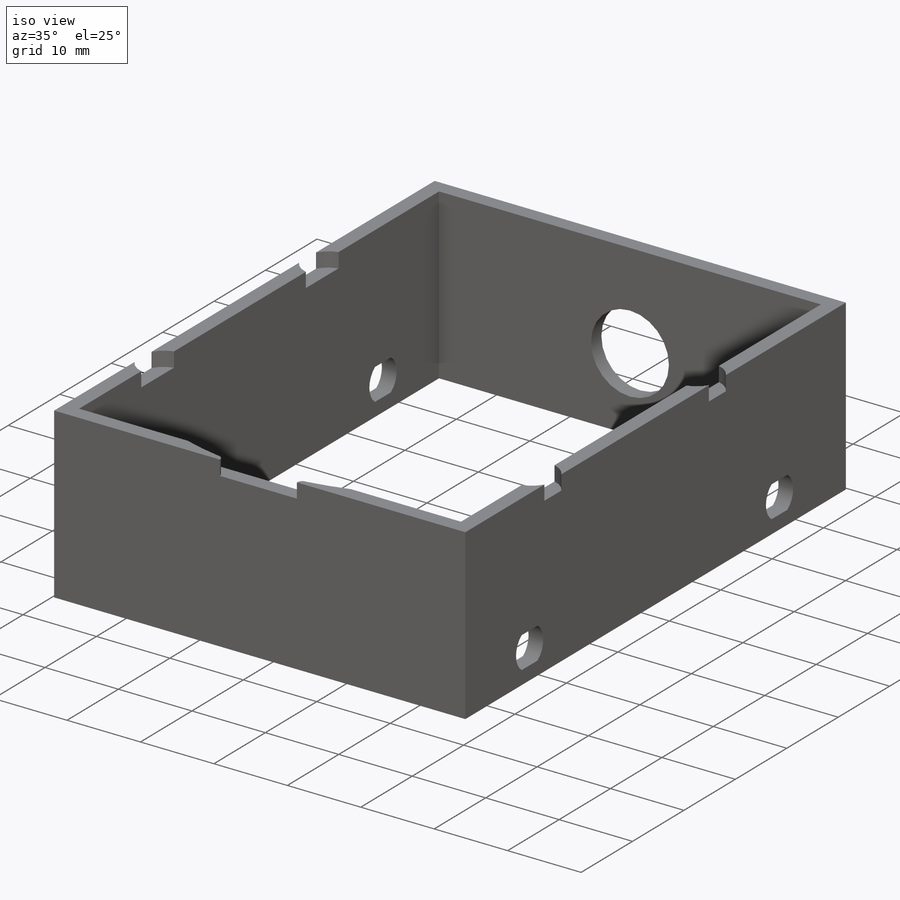
[diagram: iso view]
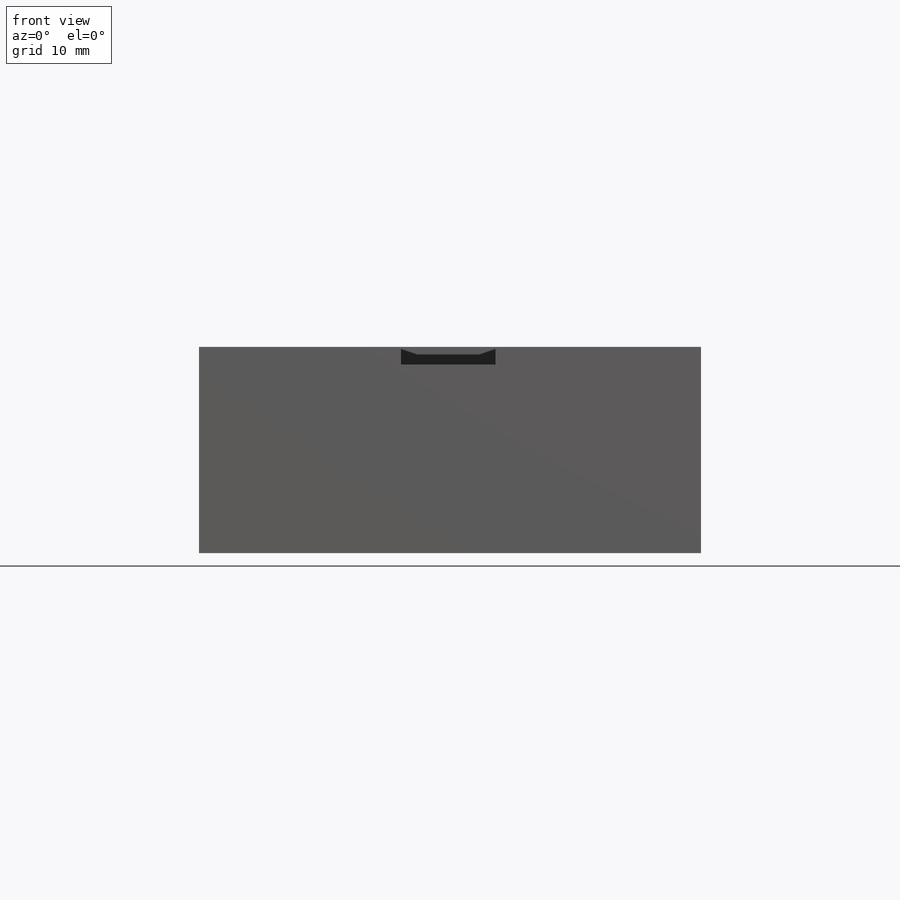
[diagram: front view]
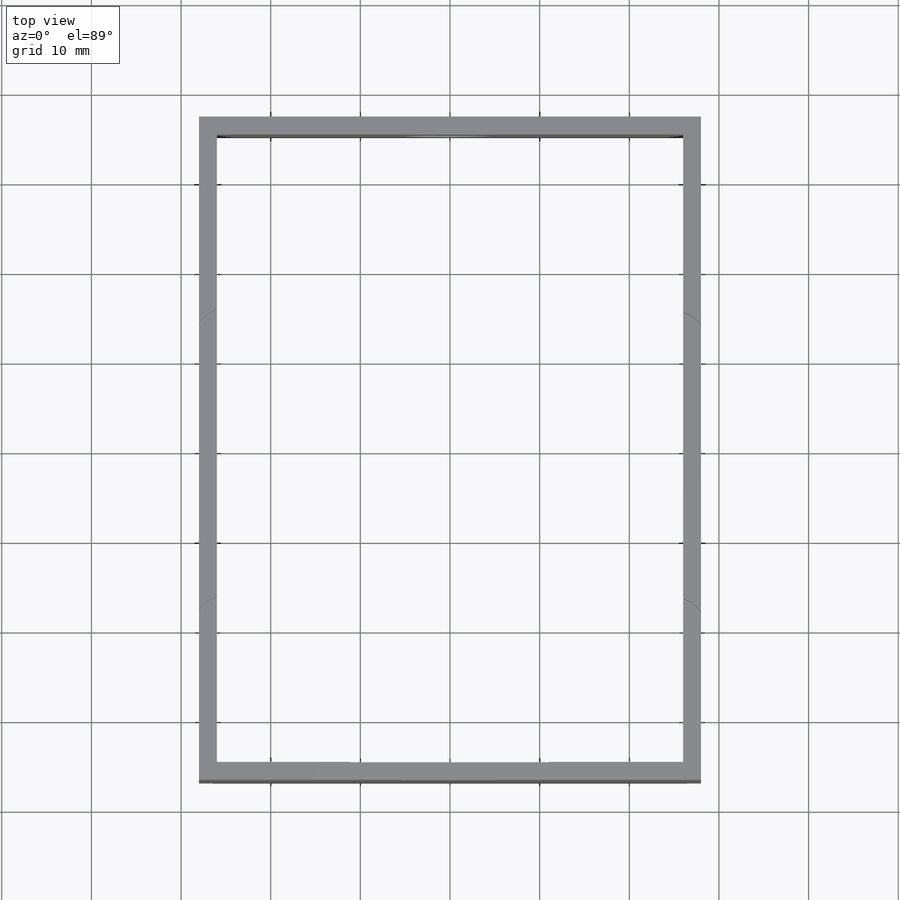
[diagram: top view]
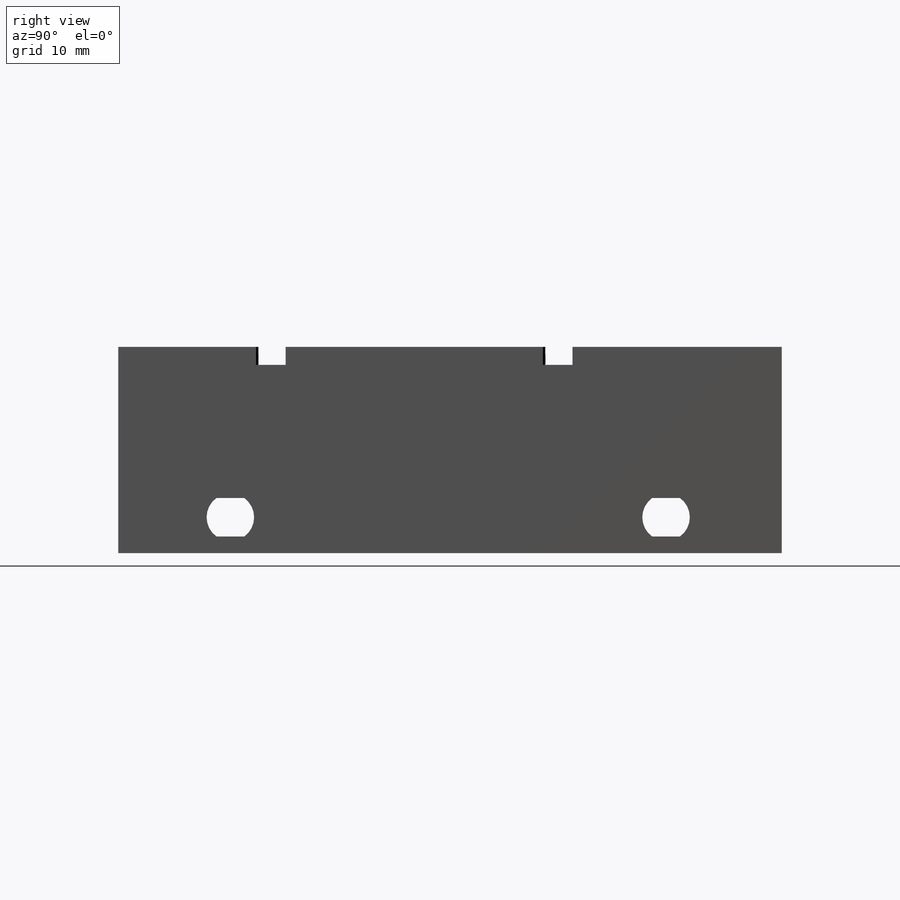
[diagram: right view]
SOLIDWORKS PART (.sldprt)
format: sldprt  version: not decoded by parser v0  size: 448,512 bytes
history: native  units: mm
features: sketch x9, extrude x6, cut_extrude x3, material x1, boolean_combine x1 (+11 scaffold rows collapsed)
feature tree (31):
  scaffold x11  (default folders/planes/origin — collapsed)
  material  "Material <not specified>"
  sketch  "Sketch1"  dims[c1.D1=2.3mm c1.D2=0.3mm c2.D1=2.0mm c2.D2=2.0mm c3.D1=2.0mm]
  extrude  "Boss-Extrude1"  Depth=13mm
  sketch  "Sketch5"  dims[D1=0.3mm]
  extrude  "Boss-Extrude3"  Depth=2.3mm
  sketch  "Sketch6"  dims[D1=2.3mm]
  extrude  "Boss-Extrude4"  Depth=2.3mm
  sketch  "Sketch9"
  extrude  "Boss-Extrude5"  Depth=34mm
  boolean_combine  "Combine1"
  sketch  "Sketch10"  dims[D1=0.0mm]
  extrude  "Boss-Extrude6"  Depth=10mm
  sketch  "Sketch11"  dims[D1=0.0mm]
  extrude  "Boss-Extrude7"  [1 undecoded]
  sketch  "Sketch7"  dims[D1=10.0mm]
  cut_extrude  "Cut-Extrude1"  [1 undecoded]
  sketch  "Sketch8"  dims[c1.D1=2.0mm c1.D2=4.0mm c2.D1=0.15mm c2.D2=0.15mm]
  cut_extrude  "Cut-Extrude2"  Depth=70mm
  sketch  "Sketch12"  dims[D1=0.3mm D2=0.3mm]
  cut_extrude  "Cut-Extrude3"  Depth=2mm
decode coverage: 15 of 19 modeling features carry decoded parameters
note: 2 parameter values undecoded
note: suppression state not decoded; provenance and decode notes live in map.json
